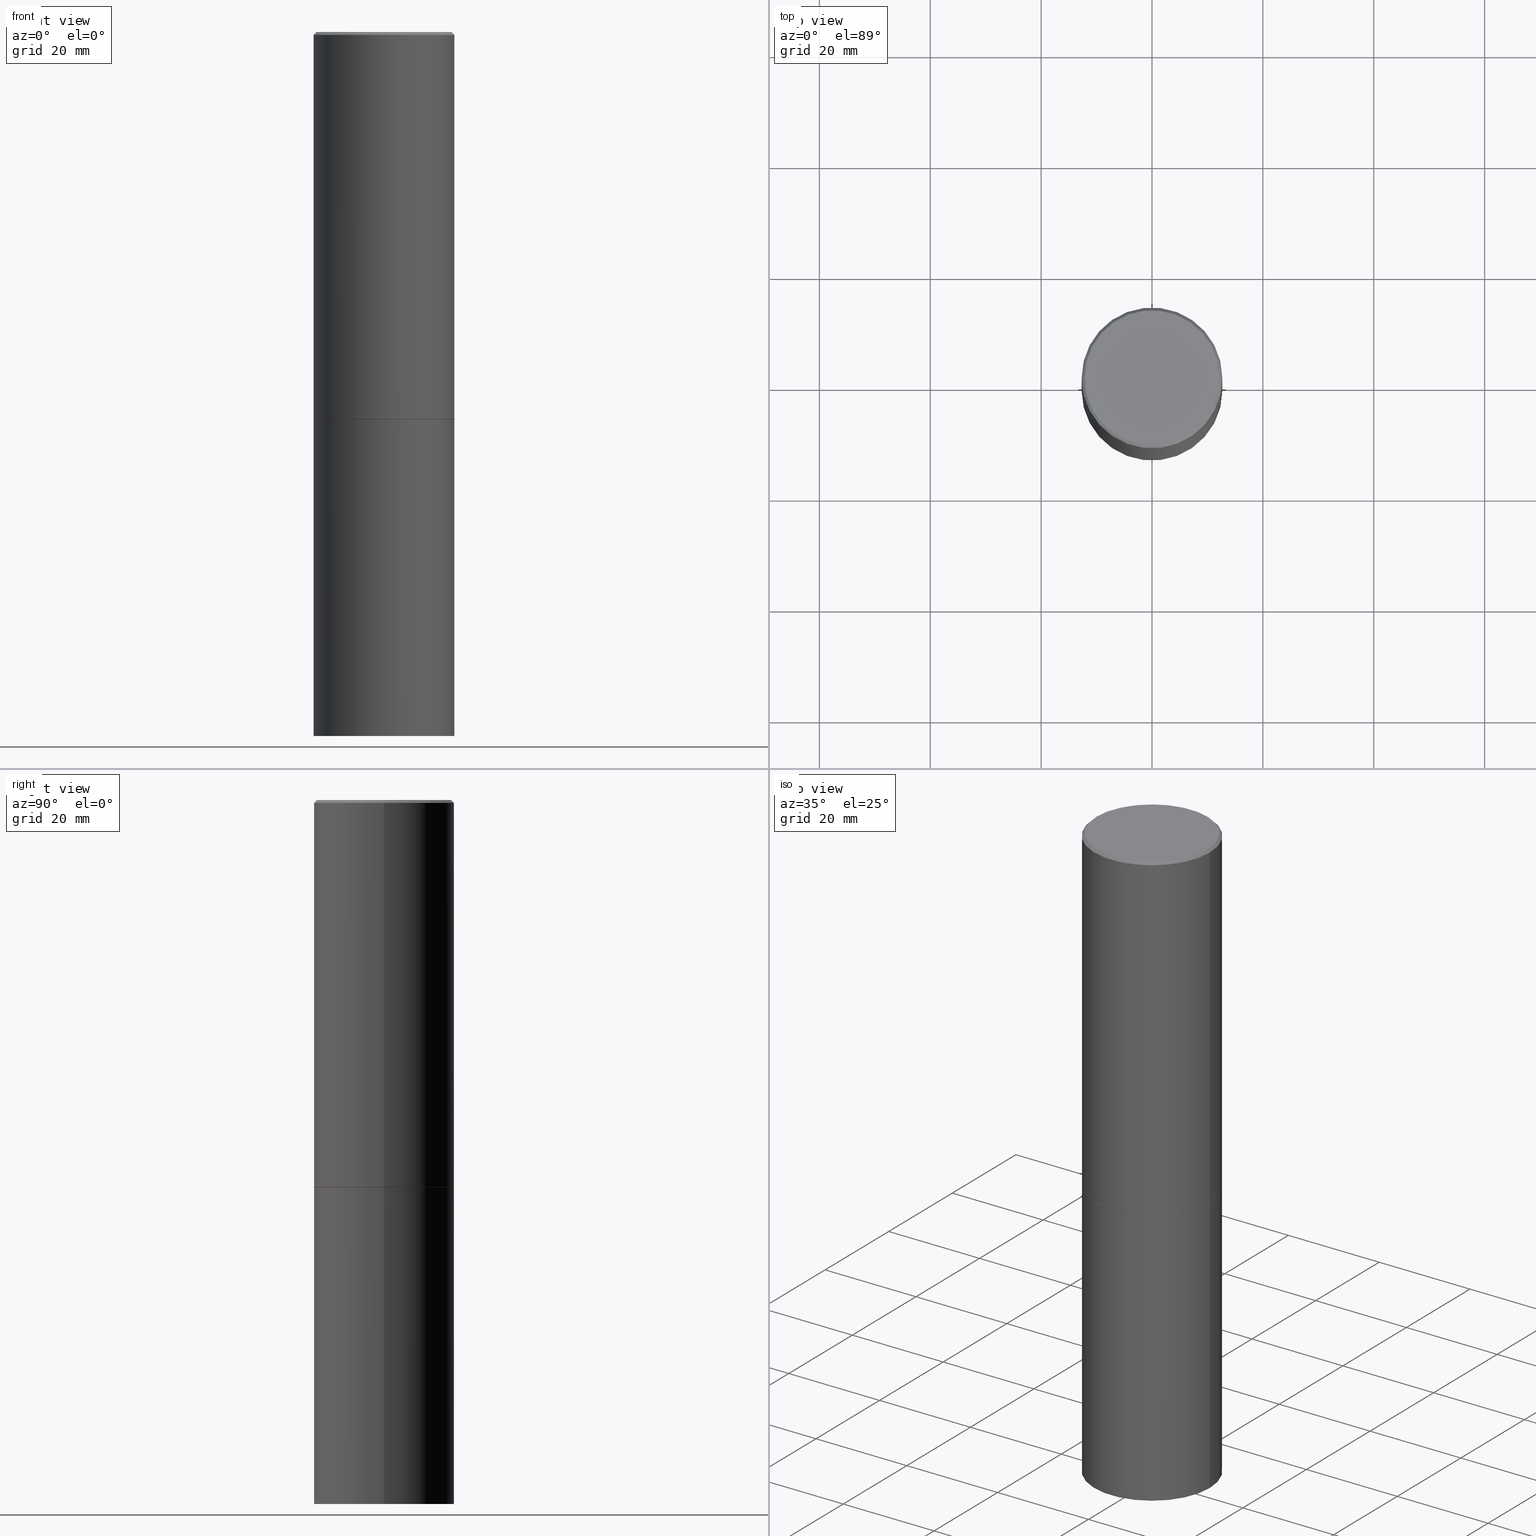
[diagram: canonical four-view strip — front | top / right | iso, engineering-drawing reading convention]
A machine part, canonical four-view strip (front | top / right | iso — engineering-drawing reading convention). The complete STEP part file that produces these views, byte-faithful:
ISO-10303-21;
HEADER;
FILE_DESCRIPTION (( 'STEP AP203' ),
    '1' );
FILE_NAME ('70488.STEP',
    '2024-02-29T03:23:34',
    ( '' ),
    ( '' ),
    'SwSTEP 2.0',
    'SolidWorks 2023',
    '' );
FILE_SCHEMA (( 'CONFIG_CONTROL_DESIGN' ));
ENDSEC;

DATA;
#1 = APPROVAL_PERSON_ORGANIZATION ( #165, #250, #361 ) ;
#2 = DIRECTION ( 'NONE',  ( -2.438088387897960049E-29, 3.491481338843145188E-15, 1.000000000000000000 ) ) ;
#3 = ORIENTED_EDGE ( 'NONE', *, *, #293, .T. ) ;
#4 =( NAMED_UNIT ( * ) SI_UNIT ( $, .STERADIAN. ) SOLID_ANGLE_UNIT ( ) );
#5 = LINE ( 'NONE', #349, #232 ) ;
#6 = CARTESIAN_POINT ( 'NONE',  ( 3.351822085289405970E-15, 0.4799999999999997047, -1.669508273909558261E-15 ) ) ;
#7 = PERSON ( 'UNSPECIFIED', 'UNSPECIFIED', 'UNSPECIFIED', ('UNSPECIFIED'), ('UNSPECIFIED'), ('UNSPECIFIED') ) ;
#8 = AXIS2_PLACEMENT_3D ( 'NONE', #152, #227, #13 ) ;
#9 = DIRECTION ( 'NONE',  ( -2.445468806185136597E-29, 3.491481338843145583E-15, 1.000000000000000000 ) ) ;
#10 = LOCAL_TIME ( 22, 23, 34.00000000000000000, #20 ) ;
#11 = ORIENTED_EDGE ( 'NONE', *, *, #12, .F. ) ;
#12 = EDGE_CURVE ( 'NONE', #225, #273, #87, .T. ) ;
#13 = DIRECTION ( 'NONE',  ( 1.000000000000000000, -6.982962677686267499E-15, 4.876036955247132206E-29 ) ) ;
#14 = DIRECTION ( 'NONE',  ( -2.445468806185136597E-29, 3.491481338843145583E-15, 1.000000000000000000 ) ) ;
#15 = PERSON_AND_ORGANIZATION ( #7, #206 ) ;
#16 = CARTESIAN_POINT ( 'NONE',  ( -0.5000000000000000000, -9.976776509216688154E-15, -2.750000000000000000 ) ) ;
#17 = AXIS2_PLACEMENT_3D ( 'NONE', #312, #364, #163 ) ;
#18 = VERTEX_POINT ( 'NONE', #171 ) ;
#19 = COORDINATED_UNIVERSAL_TIME_OFFSET ( 5, 0, .BEHIND. ) ;
#20 = COORDINATED_UNIVERSAL_TIME_OFFSET ( 5, 0, .BEHIND. ) ;
#21 = APPROVAL ( #281, 'UNSPECIFIED' ) ;
#22 = ORIENTED_EDGE ( 'NONE', *, *, #243, .T. ) ;
#23 = APPROVAL_ROLE ( '' ) ;
#24 = ADVANCED_BREP_SHAPE_REPRESENTATION ( '70488', ( #59, #304, #197 ), #309 ) ;
#25 = CARTESIAN_POINT ( 'NONE',  ( 4.890937612370302060E-31, -6.982962677686331052E-17, -0.02000000000000011491 ) ) ;
#26 = VECTOR ( 'NONE', #48, 39.37007874015748143 ) ;
#27 = PERSON_AND_ORGANIZATION_ROLE ( 'design_owner' ) ;
#28 = CC_DESIGN_DATE_AND_TIME_ASSIGNMENT ( #158, #101, ( #109 ) ) ;
#29 = DIRECTION ( 'NONE',  ( -0.7071067811868130271, 7.493145998871311837E-15, 0.7071067811862817853 ) ) ;
#30 = FACE_OUTER_BOUND ( 'NONE', #97, .T. ) ;
#31 = CIRCLE ( 'NONE', #173, 0.4999999999999997224 ) ;
#32 = LOCAL_TIME ( 22, 23, 34.00000000000000000, #81 ) ;
#33 = CARTESIAN_POINT ( 'NONE',  ( 6.725039217009124520E-29, -9.601573681818649859E-15, -2.750000000000000000 ) ) ;
#34 = CIRCLE ( 'NONE', #239, 0.5000000000000000000 ) ;
#35 = APPROVAL ( #342, 'UNSPECIFIED' ) ;
#36 = DIRECTION ( 'NONE',  ( 1.000000000000000000, -6.982962677686269077E-15, 0.000000000000000000 ) ) ;
#37 = CARTESIAN_POINT ( 'NONE',  ( 0.4799999999999997047, -3.396558832296480127E-15, 1.280553747032483033E-17 ) ) ;
#38 = ORIENTED_EDGE ( 'NONE', *, *, #130, .F. ) ;
#39 = LOCAL_TIME ( 22, 23, 34.00000000000000000, #78 ) ;
#40 = DIRECTION ( 'NONE',  ( 1.000000000000000000, -6.982962677686266711E-15, 0.000000000000000000 ) ) ;
#41 = ORIENTED_EDGE ( 'NONE', *, *, #130, .T. ) ;
#42 = ADVANCED_FACE ( 'NONE', ( #289 ), #316, .T. ) ;
#43 = CARTESIAN_POINT ( 'NONE',  ( -0.4989999999999999991, -6.050666976027527536E-15, -2.749999999999999556 ) ) ;
#44 = ORIENTED_EDGE ( 'NONE', *, *, #113, .F. ) ;
#45 = FACE_OUTER_BOUND ( 'NONE', #308, .T. ) ;
#46 = ORIENTED_EDGE ( 'NONE', *, *, #90, .T. ) ;
#47 = PERSON_AND_ORGANIZATION ( #7, #206 ) ;
#48 = DIRECTION ( 'NONE',  ( -2.445468806185136877E-29, 3.491481338843145188E-15, 1.000000000000000000 ) ) ;
#49 = CIRCLE ( 'NONE', #267, 0.4989999999999999991 ) ;
#50 = AXIS2_PLACEMENT_3D ( 'NONE', #124, #218, #70 ) ;
#51 = VERTEX_POINT ( 'NONE', #114 ) ;
#52 = ADVANCED_FACE ( 'NONE', ( #30 ), #98, .T. ) ;
#53 = CARTESIAN_POINT ( 'NONE',  ( -0.4989999999999999991, -6.055965430375748360E-15, -2.749999999999999556 ) ) ;
#54 = CALENDAR_DATE ( 2024, 28, 2 ) ;
#55 = CC_DESIGN_PERSON_AND_ORGANIZATION_ASSIGNMENT ( #315, #112, ( #291 ) ) ;
#56 = EDGE_LOOP ( 'NONE', ( #365, #100 ) ) ;
#57 = CLOSED_SHELL ( 'NONE', ( #199, #175, #346, #187 ) ) ;
#58 = APPROVAL_PERSON_ORGANIZATION ( #226, #21, #336 ) ;
#59 = MANIFOLD_SOLID_BREP ( 'Body-Move/Copy2[1]', #57 ) ;
#60 = PERSON_AND_ORGANIZATION_ROLE ( 'classification_officer' ) ;
#61 = DIRECTION ( 'NONE',  ( -2.445468806185136877E-29, 3.491481338843145188E-15, 1.000000000000000000 ) ) ;
#62 = CARTESIAN_POINT ( 'NONE',  ( 0.000000000000000000, 0.000000000000000000, 0.000000000000000000 ) ) ;
#63 = ADVANCED_FACE ( 'NONE', ( #343 ), #170, .T. ) ;
#64 = CYLINDRICAL_SURFACE ( 'NONE', #355, 0.5000000000000000000 ) ;
#65 = VECTOR ( 'NONE', #146, 39.37007874015748143 ) ;
#66 = DIRECTION ( 'NONE',  ( -2.445468806185136597E-29, 3.491481338843145583E-15, 1.000000000000000000 ) ) ;
#67 = CARTESIAN_POINT ( 'NONE',  ( 0.4989999999999999991, -1.308607205798409720E-14, -2.749999999999999556 ) ) ;
#68 = ORIENTED_EDGE ( 'NONE', *, *, #12, .T. ) ;
#69 = PRODUCT_DEFINITION ( 'UNKNOWN', '', #291, #220 ) ;
#70 = DIRECTION ( 'NONE',  ( 1.000000000000000000, -6.982962677686266711E-15, 0.000000000000000000 ) ) ;
#71 = VERTEX_POINT ( 'NONE', #198 ) ;
#72 = APPROVAL_DATE_TIME ( #105, #21 ) ;
#73 = FACE_OUTER_BOUND ( 'NONE', #339, .T. ) ;
#74 = ORIENTED_EDGE ( 'NONE', *, *, #102, .F. ) ;
#75 = APPLICATION_PROTOCOL_DEFINITION ( 'international standard', 'config_control_design', 1994, #115 ) ;
#76 = LOCAL_TIME ( 22, 23, 34.00000000000000000, #284 ) ;
#77 = CARTESIAN_POINT ( 'NONE',  ( 0.000000000000000000, 0.000000000000000000, 0.000000000000000000 ) ) ;
#78 = COORDINATED_UNIVERSAL_TIME_OFFSET ( 5, 0, .BEHIND. ) ;
#79 = ORIENTED_EDGE ( 'NONE', *, *, #290, .T. ) ;
#80 = EDGE_CURVE ( 'NONE', #333, #225, #264, .T. ) ;
#81 = COORDINATED_UNIVERSAL_TIME_OFFSET ( 5, 0, .BEHIND. ) ;
#82 = ORIENTED_EDGE ( 'NONE', *, *, #263, .T. ) ;
#83 = AXIS2_PLACEMENT_3D ( 'NONE', #149, #270, #118 ) ;
#84 = CC_DESIGN_PERSON_AND_ORGANIZATION_ASSIGNMENT ( #235, #307, ( #69 ) ) ;
#85 = LINE ( 'NONE', #208, #327 ) ;
#86 = CARTESIAN_POINT ( 'NONE',  ( 0.4999999999999997224, -3.500078625662627502E-15, -0.02000000000000011491 ) ) ;
#87 = CIRCLE ( 'NONE', #254, 0.5000000000000000000 ) ;
#88 = LOCAL_TIME ( 22, 23, 34.00000000000000000, #19 ) ;
#89 = FACE_OUTER_BOUND ( 'NONE', #167, .T. ) ;
#90 = EDGE_CURVE ( 'NONE', #71, #104, #179, .T. ) ;
#91 = DIRECTION ( 'NONE',  ( 2.438088387897960049E-29, -3.491481338843145188E-15, -1.000000000000000000 ) ) ;
#92 = DIRECTION ( 'NONE',  ( 1.000000000000000000, -6.982962677686266711E-15, 0.000000000000000000 ) ) ;
#93 = AXIS2_PLACEMENT_3D ( 'NONE', #278, #14, #299 ) ;
#94 = CARTESIAN_POINT ( 'NONE',  ( 3.491481338843200408E-15, 0.4999999999999903411, -2.750000000000001332 ) ) ;
#95 = LINE ( 'NONE', #302, #26 ) ;
#96 = DIRECTION ( 'NONE',  ( 0.7071067811865451302, -7.319954787623248157E-15, -0.7071067811865499042 ) ) ;
#97 = EDGE_LOOP ( 'NONE', ( #222, #140, #253, #74 ) ) ;
#98 = CONICAL_SURFACE ( 'NONE', #344, 0.4999999999999997224, 0.7853981633974449483 ) ;
#99 = DIRECTION ( 'NONE',  ( 1.000000000000000000, -6.982962677686267499E-15, 4.876176775795936353E-29 ) ) ;
#100 = ORIENTED_EDGE ( 'NONE', *, *, #113, .T. ) ;
#101 = DATE_TIME_ROLE ( 'classification_date' ) ;
#102 = EDGE_CURVE ( 'NONE', #106, #51, #285, .T. ) ;
#103 = DIRECTION ( 'NONE',  ( 2.438088387897960049E-29, -3.491481338843145188E-15, -1.000000000000000000 ) ) ;
#104 = VERTEX_POINT ( 'NONE', #244 ) ;
#105 = DATE_AND_TIME ( #200, #88 ) ;
#106 = VERTEX_POINT ( 'NONE', #350 ) ;
#107 = DATE_TIME_ROLE ( 'creation_date' ) ;
#108 = AXIS2_PLACEMENT_3D ( 'NONE', #322, #91, #366 ) ;
#109 = SECURITY_CLASSIFICATION ( '', '', #192 ) ;
#110 = EDGE_LOOP ( 'NONE', ( #134, #68, #3, #189 ) ) ;
#111 = DIMENSIONAL_EXPONENTS ( 1.000000000000000000, 0.000000000000000000, 0.000000000000000000, 0.000000000000000000, 0.000000000000000000, 0.000000000000000000, 0.000000000000000000 ) ;
#112 = PERSON_AND_ORGANIZATION_ROLE ( 'creator' ) ;
#113 = EDGE_CURVE ( 'NONE', #301, #251, #141, .T. ) ;
#114 = CARTESIAN_POINT ( 'NONE',  ( -0.4999999999999997224, 3.421651712066268085E-15, -0.02000000000000011491 ) ) ;
#115 = APPLICATION_CONTEXT ( 'configuration controlled 3d designs of mechanical parts and assemblies' ) ;
#116 = AXIS2_PLACEMENT_3D ( 'NONE', #214, #123, #212 ) ;
#117 = ADVANCED_FACE ( 'NONE', ( #348 ), #176, .F. ) ;
#118 = DIRECTION ( 'NONE',  ( 1.000000000000000000, -6.982962677686266711E-15, 4.876176775795935793E-29 ) ) ;
#119 = CARTESIAN_POINT ( 'NONE',  ( -0.5000000000000000000, -1.281242234827833554E-15, -2.749000000000000110 ) ) ;
#120 = CC_DESIGN_PERSON_AND_ORGANIZATION_ASSIGNMENT ( #168, #27, ( #318 ) ) ;
#121 = CIRCLE ( 'NONE', #50, 0.4999999999999997224 ) ;
#122 = DIRECTION ( 'NONE',  ( 1.000000000000000000, -6.982962677686269077E-15, 0.000000000000000000 ) ) ;
#123 = DIRECTION ( 'NONE',  ( 2.445468806185136597E-29, -3.491481338843145583E-15, -1.000000000000000000 ) ) ;
#124 = CARTESIAN_POINT ( 'NONE',  ( 4.890937612370302060E-31, -6.982962677686331052E-17, -0.02000000000000011491 ) ) ;
#125 = AXIS2_PLACEMENT_3D ( 'NONE', #77, #201, #288 ) ;
#126 = APPROVAL_PERSON_ORGANIZATION ( #204, #35, #23 ) ;
#127 = EDGE_CURVE ( 'NONE', #333, #18, #159, .T. ) ;
#128 = EDGE_LOOP ( 'NONE', ( #82, #185, #306, #338 ) ) ;
#129 = LENGTH_MEASURE_WITH_UNIT ( LENGTH_MEASURE( 0.02539999999999999897 ), #184 );
#130 = EDGE_CURVE ( 'NONE', #18, #333, #49, .T. ) ;
#131 = CIRCLE ( 'NONE', #93, 0.5000000000000000000 ) ;
#132 = DIRECTION ( 'NONE',  ( -2.445468806185136597E-29, 3.491481338843145583E-15, 1.000000000000000000 ) ) ;
#133 = ORIENTED_EDGE ( 'NONE', *, *, #274, .T. ) ;
#134 = ORIENTED_EDGE ( 'NONE', *, *, #274, .F. ) ;
#135 = CALENDAR_DATE ( 2024, 28, 2 ) ;
#136 = MECHANICAL_CONTEXT ( 'NONE', #295, 'mechanical' ) ;
#137 = CARTESIAN_POINT ( 'NONE',  ( -0.4999999999999997224, 3.421651712066268085E-15, -0.02000000000000011491 ) ) ;
#138 = CARTESIAN_POINT ( 'NONE',  ( 0.000000000000000000, 0.000000000000000000, 0.000000000000000000 ) ) ;
#139 = CARTESIAN_POINT ( 'NONE',  ( 6.725039217009123399E-29, -9.601573681818648281E-15, -2.749999999999999556 ) ) ;
#140 = ORIENTED_EDGE ( 'NONE', *, *, #229, .T. ) ;
#141 = CIRCLE ( 'NONE', #280, 0.5000000000000000000 ) ;
#142 = AXIS2_PLACEMENT_3D ( 'NONE', #352, #247, #40 ) ;
#143 = FACE_OUTER_BOUND ( 'NONE', #164, .T. ) ;
#144 = UNCERTAINTY_MEASURE_WITH_UNIT (LENGTH_MEASURE( 1.000000000000000082E-05 ), #252, 'distance_accuracy_value', 'NONE');
#145 = CARTESIAN_POINT ( 'NONE',  ( 6.725039217009124520E-29, -9.601573681818649859E-15, -2.750000000000000000 ) ) ;
#146 = DIRECTION ( 'NONE',  ( -0.7071067811865451302, 2.468850131082231817E-15, -0.7071067811865499042 ) ) ;
#147 = ORIENTED_EDGE ( 'NONE', *, *, #80, .F. ) ;
#148 = CARTESIAN_POINT ( 'NONE',  ( 6.725039217009123399E-29, -9.601573681818648281E-15, -2.749999999999999556 ) ) ;
#149 = CARTESIAN_POINT ( 'NONE',  ( 0.000000000000000000, 0.000000000000000000, 0.000000000000000000 ) ) ;
#150 = EDGE_CURVE ( 'NONE', #256, #51, #31, .T. ) ;
#151 = DIRECTION ( 'NONE',  ( -2.445468806185136597E-29, 3.491481338843145583E-15, 1.000000000000000000 ) ) ;
#152 = CARTESIAN_POINT ( 'NONE',  ( -3.131554243005659264E-46, 4.471029511141341874E-32, 1.280553747030123384E-17 ) ) ;
#153 = ORIENTED_EDGE ( 'NONE', *, *, #205, .F. ) ;
#154 = CC_DESIGN_PERSON_AND_ORGANIZATION_ASSIGNMENT ( #47, #60, ( #109 ) ) ;
#155 = FACE_OUTER_BOUND ( 'NONE', #331, .T. ) ;
#156 = ORIENTED_EDGE ( 'NONE', *, *, #150, .F. ) ;
#157 = CARTESIAN_POINT ( 'NONE',  ( 0.4999999999999998335, -3.491481338843132566E-15, 2.438088387897967336E-29 ) ) ;
#158 = DATE_AND_TIME ( #231, #39 ) ;
#159 = CIRCLE ( 'NONE', #215, 0.4989999999999999991 ) ;
#160 = CARTESIAN_POINT ( 'NONE',  ( 0.5000000000000000000, -1.309305502066178321E-14, -2.750000000000000000 ) ) ;
#161 = ORIENTED_EDGE ( 'NONE', *, *, #102, .T. ) ;
#162 = APPROVAL_STATUS ( 'not_yet_approved' ) ;
#163 = DIRECTION ( 'NONE',  ( 1.000000000000000000, -6.982962677686266711E-15, 0.000000000000000000 ) ) ;
#164 = EDGE_LOOP ( 'NONE', ( #191, #248 ) ) ;
#165 = PERSON_AND_ORGANIZATION ( #7, #206 ) ;
#166 = VECTOR ( 'NONE', #96, 39.37007874015748143 ) ;
#167 = EDGE_LOOP ( 'NONE', ( #261, #320, #161, #79 ) ) ;
#168 = PERSON_AND_ORGANIZATION ( #7, #206 ) ;
#169 = EDGE_CURVE ( 'NONE', #104, #251, #5, .T. ) ;
#170 = CYLINDRICAL_SURFACE ( 'NONE', #125, 0.4999999999999998335 ) ;
#171 = CARTESIAN_POINT ( 'NONE',  ( 0.4989999999999999991, -1.308607205798409720E-14, -2.749999999999999556 ) ) ;
#172 = DIRECTION ( 'NONE',  ( -2.445468806185136597E-29, 3.491481338843145583E-15, 1.000000000000000000 ) ) ;
#173 = AXIS2_PLACEMENT_3D ( 'NONE', #178, #269, #92 ) ;
#174 = DIRECTION ( 'NONE',  ( -2.445468806185136597E-29, 3.491481338843145583E-15, 1.000000000000000000 ) ) ;
#175 = ADVANCED_FACE ( 'NONE', ( #143 ), #347, .T. ) ;
#176 = PLANE ( 'NONE',  #325 ) ;
#177 =( NAMED_UNIT ( * ) PLANE_ANGLE_UNIT ( ) SI_UNIT ( $, .RADIAN. ) );
#178 = CARTESIAN_POINT ( 'NONE',  ( 4.890937612370302060E-31, -6.982962677686331052E-17, -0.02000000000000011491 ) ) ;
#179 = CIRCLE ( 'NONE', #17, 0.5000000000000000000 ) ;
#180 = VECTOR ( 'NONE', #183, 39.37007874015748854 ) ;
#181 = FACE_OUTER_BOUND ( 'NONE', #128, .T. ) ;
#182 = ADVANCED_FACE ( 'NONE', ( #89 ), #286, .T. ) ;
#183 = DIRECTION ( 'NONE',  ( 0.7071067811868130271, -2.468850131085038979E-15, 0.7071067811862817853 ) ) ;
#184 =( LENGTH_UNIT ( ) NAMED_UNIT ( * ) SI_UNIT ( $, .METRE. ) );
#185 = ORIENTED_EDGE ( 'NONE', *, *, #205, .T. ) ;
#186 = AXIS2_PLACEMENT_3D ( 'NONE', #139, #359, #362 ) ;
#187 = ADVANCED_FACE ( 'NONE', ( #324 ), #64, .T. ) ;
#188 = DIRECTION ( 'NONE',  ( -2.445468806185136597E-29, 3.491481338843145583E-15, 1.000000000000000000 ) ) ;
#189 = ORIENTED_EDGE ( 'NONE', *, *, #290, .F. ) ;
#190 = DIRECTION ( 'NONE',  ( 1.000000000000000000, -6.982962677686266711E-15, 0.000000000000000000 ) ) ;
#191 = ORIENTED_EDGE ( 'NONE', *, *, #263, .F. ) ;
#192 = SECURITY_CLASSIFICATION_LEVEL ( 'unclassified' ) ;
#193 = PLANE ( 'NONE',  #255 ) ;
#194 = ORIENTED_EDGE ( 'NONE', *, *, #236, .F. ) ;
#195 = DIRECTION ( 'NONE',  ( 1.000000000000000000, 0.000000000000000000, 0.000000000000000000 ) ) ;
#196 = VECTOR ( 'NONE', #29, 39.37007874015748854 ) ;
#197 = AXIS2_PLACEMENT_3D ( 'NONE', #138, #257, #195 ) ;
#198 = CARTESIAN_POINT ( 'NONE',  ( -0.5000000000000000000, -9.976776509216688154E-15, -5.000000000000000000 ) ) ;
#199 = ADVANCED_FACE ( 'NONE', ( #181 ), #297, .T. ) ;
#200 = CALENDAR_DATE ( 2024, 28, 2 ) ;
#201 = DIRECTION ( 'NONE',  ( -2.445468806185136597E-29, 3.491481338843145583E-15, 1.000000000000000000 ) ) ;
#202 = APPROVAL_DATE_TIME ( #260, #35 ) ;
#203 = ORIENTED_EDGE ( 'NONE', *, *, #351, .F. ) ;
#204 = PERSON_AND_ORGANIZATION ( #7, #206 ) ;
#205 = EDGE_CURVE ( 'NONE', #71, #301, #85, .T. ) ;
#206 = ORGANIZATION ( 'UNSPECIFIED', 'UNSPECIFIED', '' ) ;
#207 = DIRECTION ( 'NONE',  ( 1.000000000000000000, -6.982962677686266711E-15, 0.000000000000000000 ) ) ;
#208 = CARTESIAN_POINT ( 'NONE',  ( -0.5000000000000000000, 3.552713678800500929E-15, -2.459467545127452891E-29 ) ) ;
#209 = DIRECTION ( 'NONE',  ( 1.000000000000000000, -6.982962677686266711E-15, 0.000000000000000000 ) ) ;
#210 = CIRCLE ( 'NONE', #8, 0.4799999999999997047 ) ;
#211 = CC_DESIGN_PERSON_AND_ORGANIZATION_ASSIGNMENT ( #15, #228, ( #291 ) ) ;
#212 = DIRECTION ( 'NONE',  ( -1.000000000000000000, 6.982962677686266711E-15, 0.000000000000000000 ) ) ;
#213 = PRODUCT_RELATED_PRODUCT_CATEGORY ( 'detail', '', ( #318 ) ) ;
#214 = CARTESIAN_POINT ( 'NONE',  ( 4.890937612370302060E-31, -6.982962677686331052E-17, -0.02000000000000011491 ) ) ;
#215 = AXIS2_PLACEMENT_3D ( 'NONE', #292, #294, #36 ) ;
#216 = AXIS2_PLACEMENT_3D ( 'NONE', #217, #188, #275 ) ;
#217 = CARTESIAN_POINT ( 'NONE',  ( -3.131554243005659264E-46, 4.471029511141341874E-32, 1.280553747030123384E-17 ) ) ;
#218 = DIRECTION ( 'NONE',  ( -2.445468806185136597E-29, 3.491481338843145583E-15, 1.000000000000000000 ) ) ;
#219 = ORIENTED_EDGE ( 'NONE', *, *, #169, .T. ) ;
#220 = DESIGN_CONTEXT ( 'detailed design', #115, 'design' ) ;
#221 = CYLINDRICAL_SURFACE ( 'NONE', #262, 0.4999999999999998335 ) ;
#222 = ORIENTED_EDGE ( 'NONE', *, *, #323, .F. ) ;
#223 = CLOSED_SHELL ( 'NONE', ( #279, #334, #52, #182, #63, #42, #117, #319 ) ) ;
#224 = DIRECTION ( 'NONE',  ( -1.000000000000000000, 6.982962677686265922E-15, -4.876176775795935793E-29 ) ) ;
#225 = VERTEX_POINT ( 'NONE', #119 ) ;
#226 = PERSON_AND_ORGANIZATION ( #7, #206 ) ;
#227 = DIRECTION ( 'NONE',  ( -2.445468806185136597E-29, 3.491481338843145583E-15, 1.000000000000000000 ) ) ;
#228 = PERSON_AND_ORGANIZATION_ROLE ( 'design_supplier' ) ;
#229 = EDGE_CURVE ( 'NONE', #354, #256, #241, .T. ) ;
#230 = DIRECTION ( 'NONE',  ( -2.445468806185136597E-29, 3.491481338843145583E-15, 1.000000000000000000 ) ) ;
#231 = CALENDAR_DATE ( 2024, 28, 2 ) ;
#232 = VECTOR ( 'NONE', #240, 39.37007874015748143 ) ;
#233 = AXIS2_PLACEMENT_3D ( 'NONE', #6, #103, #353 ) ;
#234 = EDGE_LOOP ( 'NONE', ( #153, #46, #219, #44 ) ) ;
#235 = PERSON_AND_ORGANIZATION ( #7, #206 ) ;
#236 = EDGE_CURVE ( 'NONE', #273, #225, #296, .T. ) ;
#237 = DATE_AND_TIME ( #313, #32 ) ;
#238 = DIRECTION ( 'NONE',  ( -1.000000000000000000, 6.982962677686266711E-15, 0.000000000000000000 ) ) ;
#239 = AXIS2_PLACEMENT_3D ( 'NONE', #330, #132, #190 ) ;
#240 = DIRECTION ( 'NONE',  ( -2.445468806185136877E-29, 3.491481338843145188E-15, 1.000000000000000000 ) ) ;
#241 = LINE ( 'NONE', #86, #166 ) ;
#242 = DIRECTION ( 'NONE',  ( 1.000000000000000000, -6.982962677686265922E-15, 4.876176775795935793E-29 ) ) ;
#243 = EDGE_CURVE ( 'NONE', #106, #354, #317, .T. ) ;
#244 = CARTESIAN_POINT ( 'NONE',  ( 0.5000000000000000000, -2.094888803305886324E-14, -5.000000000000000000 ) ) ;
#245 = CARTESIAN_POINT ( 'NONE',  ( 0.000000000000000000, 0.000000000000000000, 0.000000000000000000 ) ) ;
#246 = CC_DESIGN_APPROVAL ( #250, ( #69 ) ) ;
#247 = DIRECTION ( 'NONE',  ( -2.445468806185136597E-29, 3.491481338843145583E-15, 1.000000000000000000 ) ) ;
#248 = ORIENTED_EDGE ( 'NONE', *, *, #90, .F. ) ;
#249 = CARTESIAN_POINT ( 'NONE',  ( 0.4999999999999997224, -3.500078625662627502E-15, -0.02000000000000011491 ) ) ;
#250 = APPROVAL ( #162, 'UNSPECIFIED' ) ;
#251 = VERTEX_POINT ( 'NONE', #160 ) ;
#252 =( CONVERSION_BASED_UNIT ( 'INCH', #129 ) LENGTH_UNIT ( ) NAMED_UNIT ( #111 ) );
#253 = ORIENTED_EDGE ( 'NONE', *, *, #150, .T. ) ;
#254 = AXIS2_PLACEMENT_3D ( 'NONE', #266, #230, #207 ) ;
#255 = AXIS2_PLACEMENT_3D ( 'NONE', #94, #328, #224 ) ;
#256 = VERTEX_POINT ( 'NONE', #249 ) ;
#257 = DIRECTION ( 'NONE',  ( 0.000000000000000000, 0.000000000000000000, 1.000000000000000000 ) ) ;
#258 = EDGE_CURVE ( 'NONE', #251, #301, #34, .T. ) ;
#259 = ORIENTED_EDGE ( 'NONE', *, *, #236, .T. ) ;
#260 = DATE_AND_TIME ( #135, #10 ) ;
#261 = ORIENTED_EDGE ( 'NONE', *, *, #229, .F. ) ;
#262 = AXIS2_PLACEMENT_3D ( 'NONE', #245, #151, #99 ) ;
#263 = EDGE_CURVE ( 'NONE', #104, #71, #131, .T. ) ;
#264 = LINE ( 'NONE', #53, #196 ) ;
#265 = PRODUCT_DEFINITION_SHAPE ( 'NONE', 'NONE',  #69 ) ;
#266 = CARTESIAN_POINT ( 'NONE',  ( 6.722593748202941159E-29, -9.598082200479808430E-15, -2.749000000000000110 ) ) ;
#267 = AXIS2_PLACEMENT_3D ( 'NONE', #148, #66, #122 ) ;
#268 = VECTOR ( 'NONE', #337, 39.37007874015748143 ) ;
#269 = DIRECTION ( 'NONE',  ( -2.445468806185136597E-29, 3.491481338843145583E-15, 1.000000000000000000 ) ) ;
#270 = DIRECTION ( 'NONE',  ( -2.445468806185136597E-29, 3.491481338843145583E-15, 1.000000000000000000 ) ) ;
#271 = CARTESIAN_POINT ( 'NONE',  ( 0.5000000000000000000, -1.308956353932294179E-14, -2.749000000000000110 ) ) ;
#272 = CC_DESIGN_APPROVAL ( #35, ( #291 ) ) ;
#273 = VERTEX_POINT ( 'NONE', #271 ) ;
#274 = EDGE_CURVE ( 'NONE', #225, #51, #95, .T. ) ;
#275 = DIRECTION ( 'NONE',  ( 1.000000000000000000, -6.982962677686267499E-15, 4.876036955247132206E-29 ) ) ;
#276 = ORIENTED_EDGE ( 'NONE', *, *, #127, .F. ) ;
#277 = FACE_OUTER_BOUND ( 'NONE', #56, .T. ) ;
#278 = CARTESIAN_POINT ( 'NONE',  ( 1.222734403092568523E-28, -1.745740669421572989E-14, -5.000000000000000000 ) ) ;
#279 = ADVANCED_FACE ( 'NONE', ( #155 ), #345, .T. ) ;
#280 = AXIS2_PLACEMENT_3D ( 'NONE', #145, #172, #209 ) ;
#281 = APPROVAL_STATUS ( 'not_yet_approved' ) ;
#282 = AXIS2_PLACEMENT_3D ( 'NONE', #298, #9, #332 ) ;
#283 = ORIENTED_EDGE ( 'NONE', *, *, #323, .T. ) ;
#284 = COORDINATED_UNIVERSAL_TIME_OFFSET ( 5, 0, .BEHIND. ) ;
#285 = LINE ( 'NONE', #137, #65 ) ;
#286 = CONICAL_SURFACE ( 'NONE', #116, 0.4999999999999997224, 0.7853981633974449483 ) ;
#287 = ORIENTED_EDGE ( 'NONE', *, *, #293, .F. ) ;
#288 = DIRECTION ( 'NONE',  ( 1.000000000000000000, -6.982962677686267499E-15, 4.876176775795936353E-29 ) ) ;
#289 = FACE_OUTER_BOUND ( 'NONE', #310, .T. ) ;
#290 = EDGE_CURVE ( 'NONE', #51, #256, #121, .T. ) ;
#291 = PRODUCT_DEFINITION_FORMATION_WITH_SPECIFIED_SOURCE ( 'ANY', '', #318, .NOT_KNOWN. ) ;
#292 = CARTESIAN_POINT ( 'NONE',  ( 6.725039217009123399E-29, -9.601573681818648281E-15, -2.749999999999999556 ) ) ;
#293 = EDGE_CURVE ( 'NONE', #273, #256, #305, .T. ) ;
#294 = DIRECTION ( 'NONE',  ( -2.445468806185136597E-29, 3.491481338843145583E-15, 1.000000000000000000 ) ) ;
#295 = APPLICATION_CONTEXT ( 'configuration controlled 3d designs of mechanical parts and assemblies' ) ;
#296 = CIRCLE ( 'NONE', #142, 0.5000000000000000000 ) ;
#297 = CYLINDRICAL_SURFACE ( 'NONE', #83, 0.5000000000000000000 ) ;
#298 = CARTESIAN_POINT ( 'NONE',  ( 6.725039217009123399E-29, -9.601573681818648281E-15, -2.749999999999999556 ) ) ;
#299 = DIRECTION ( 'NONE',  ( 1.000000000000000000, -6.982962677686266711E-15, 0.000000000000000000 ) ) ;
#300 = CC_DESIGN_SECURITY_CLASSIFICATION ( #109, ( #291 ) ) ;
#301 = VERTEX_POINT ( 'NONE', #16 ) ;
#302 = CARTESIAN_POINT ( 'NONE',  ( -0.4999999999999998335, 3.552713678800499746E-15, -2.459467545127452330E-29 ) ) ;
#303 = ORIENTED_EDGE ( 'NONE', *, *, #127, .T. ) ;
#304 = MANIFOLD_SOLID_BREP ( 'Body-Move/Copy2[2]', #223 ) ;
#305 = LINE ( 'NONE', #157, #268 ) ;
#306 = ORIENTED_EDGE ( 'NONE', *, *, #258, .F. ) ;
#307 = PERSON_AND_ORGANIZATION_ROLE ( 'creator' ) ;
#308 = EDGE_LOOP ( 'NONE', ( #22, #283 ) ) ;
#309 =( GEOMETRIC_REPRESENTATION_CONTEXT ( 3 ) GLOBAL_UNCERTAINTY_ASSIGNED_CONTEXT ( ( #144 ) ) GLOBAL_UNIT_ASSIGNED_CONTEXT ( ( #252, #177, #4 ) ) REPRESENTATION_CONTEXT ( 'NONE', 'WORKASPACE' ) );
#310 = EDGE_LOOP ( 'NONE', ( #147, #303, #356, #11 ) ) ;
#311 = SHAPE_DEFINITION_REPRESENTATION ( #265, #24 ) ;
#312 = CARTESIAN_POINT ( 'NONE',  ( 1.222734403092568523E-28, -1.745740669421572989E-14, -5.000000000000000000 ) ) ;
#313 = CALENDAR_DATE ( 2024, 28, 2 ) ;
#314 = EDGE_LOOP ( 'NONE', ( #38, #276 ) ) ;
#315 = PERSON_AND_ORGANIZATION ( #7, #206 ) ;
#316 = CONICAL_SURFACE ( 'NONE', #186, 0.4989999999999999991, 0.7853981633978239785 ) ;
#317 = CIRCLE ( 'NONE', #216, 0.4799999999999997047 ) ;
#318 = PRODUCT ( '70488', '70488', '', ( #136 ) ) ;
#319 = ADVANCED_FACE ( 'NONE', ( #45 ), #357, .F. ) ;
#320 = ORIENTED_EDGE ( 'NONE', *, *, #243, .F. ) ;
#321 = CC_DESIGN_APPROVAL ( #21, ( #109 ) ) ;
#322 = CARTESIAN_POINT ( 'NONE',  ( 3.491481338843255234E-15, 0.4999999999999825140, -5.000000000000002665 ) ) ;
#323 = EDGE_CURVE ( 'NONE', #354, #106, #210, .T. ) ;
#324 = FACE_OUTER_BOUND ( 'NONE', #234, .T. ) ;
#325 = AXIS2_PLACEMENT_3D ( 'NONE', #33, #2, #242 ) ;
#326 = DIRECTION ( 'NONE',  ( 1.000000000000000000, -6.982962677686266711E-15, 4.876176775795935793E-29 ) ) ;
#327 = VECTOR ( 'NONE', #61, 39.37007874015748143 ) ;
#328 = DIRECTION ( 'NONE',  ( 2.438088387897960049E-29, -3.491481338843145188E-15, -1.000000000000000000 ) ) ;
#329 = ORIENTED_EDGE ( 'NONE', *, *, #80, .T. ) ;
#330 = CARTESIAN_POINT ( 'NONE',  ( 6.725039217009124520E-29, -9.601573681818649859E-15, -2.750000000000000000 ) ) ;
#331 = EDGE_LOOP ( 'NONE', ( #41, #329, #194, #203 ) ) ;
#332 = DIRECTION ( 'NONE',  ( 1.000000000000000000, -6.982962677686269077E-15, 0.000000000000000000 ) ) ;
#333 = VERTEX_POINT ( 'NONE', #43 ) ;
#334 = ADVANCED_FACE ( 'NONE', ( #73 ), #221, .T. ) ;
#335 = LINE ( 'NONE', #67, #180 ) ;
#336 = APPROVAL_ROLE ( '' ) ;
#337 = DIRECTION ( 'NONE',  ( -2.445468806185136877E-29, 3.491481338843145188E-15, 1.000000000000000000 ) ) ;
#338 = ORIENTED_EDGE ( 'NONE', *, *, #169, .F. ) ;
#339 = EDGE_LOOP ( 'NONE', ( #259, #133, #156, #287 ) ) ;
#340 = APPLICATION_PROTOCOL_DEFINITION ( 'international standard', 'config_control_design', 1994, #295 ) ;
#341 = DIRECTION ( 'NONE',  ( 2.445468806185136597E-29, -3.491481338843145583E-15, -1.000000000000000000 ) ) ;
#342 = APPROVAL_STATUS ( 'not_yet_approved' ) ;
#343 = FACE_OUTER_BOUND ( 'NONE', #110, .T. ) ;
#344 = AXIS2_PLACEMENT_3D ( 'NONE', #25, #341, #238 ) ;
#345 = CONICAL_SURFACE ( 'NONE', #282, 0.4989999999999999991, 0.7853981633978239785 ) ;
#346 = ADVANCED_FACE ( 'NONE', ( #277 ), #193, .F. ) ;
#347 = PLANE ( 'NONE',  #108 ) ;
#348 = FACE_OUTER_BOUND ( 'NONE', #314, .T. ) ;
#349 = CARTESIAN_POINT ( 'NONE',  ( 0.5000000000000000000, -3.491481338843133355E-15, 2.438088387897967896E-29 ) ) ;
#350 = CARTESIAN_POINT ( 'NONE',  ( -0.4799999999999997047, 3.386736898677837619E-15, 1.280553747027767124E-17 ) ) ;
#351 = EDGE_CURVE ( 'NONE', #18, #273, #335, .T. ) ;
#352 = CARTESIAN_POINT ( 'NONE',  ( 6.722593748202941159E-29, -9.598082200479808430E-15, -2.749000000000000110 ) ) ;
#353 = DIRECTION ( 'NONE',  ( -1.000000000000000000, 6.982962677686265922E-15, -4.876176775795935793E-29 ) ) ;
#354 = VERTEX_POINT ( 'NONE', #37 ) ;
#355 = AXIS2_PLACEMENT_3D ( 'NONE', #62, #174, #326 ) ;
#356 = ORIENTED_EDGE ( 'NONE', *, *, #351, .T. ) ;
#357 = PLANE ( 'NONE',  #233 ) ;
#358 = DATE_AND_TIME ( #54, #76 ) ;
#359 = DIRECTION ( 'NONE',  ( -2.445468806185136597E-29, 3.491481338843145583E-15, 1.000000000000000000 ) ) ;
#360 = APPROVAL_DATE_TIME ( #237, #250 ) ;
#361 = APPROVAL_ROLE ( '' ) ;
#362 = DIRECTION ( 'NONE',  ( 1.000000000000000000, -6.982962677686269077E-15, 0.000000000000000000 ) ) ;
#363 = CC_DESIGN_DATE_AND_TIME_ASSIGNMENT ( #358, #107, ( #69 ) ) ;
#364 = DIRECTION ( 'NONE',  ( -2.445468806185136597E-29, 3.491481338843145583E-15, 1.000000000000000000 ) ) ;
#365 = ORIENTED_EDGE ( 'NONE', *, *, #258, .T. ) ;
#366 = DIRECTION ( 'NONE',  ( -1.000000000000000000, 6.982962677686265922E-15, -4.876176775795935793E-29 ) ) ;
ENDSEC;
END-ISO-10303-21;
